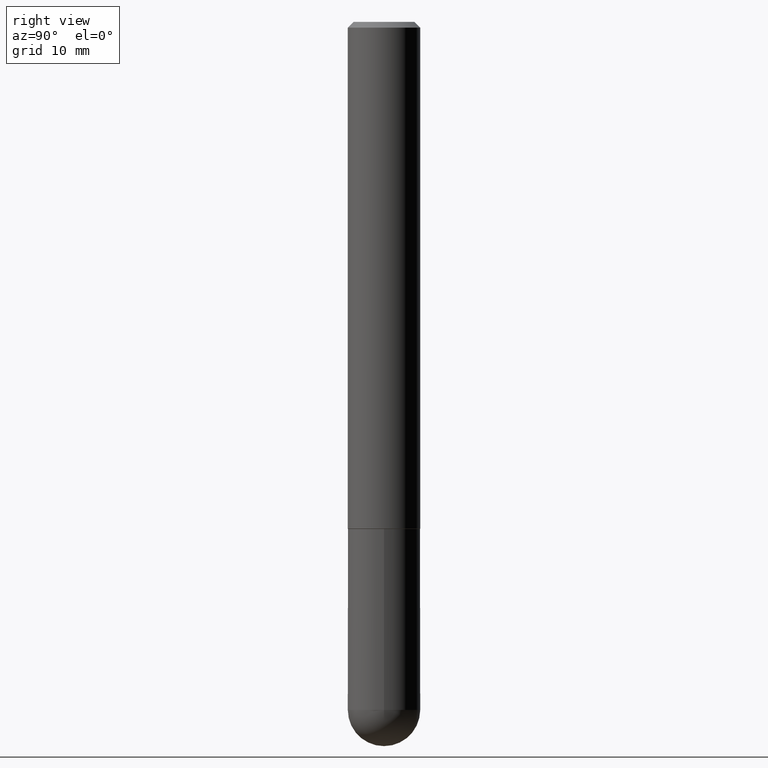
[diagram: clean part render]
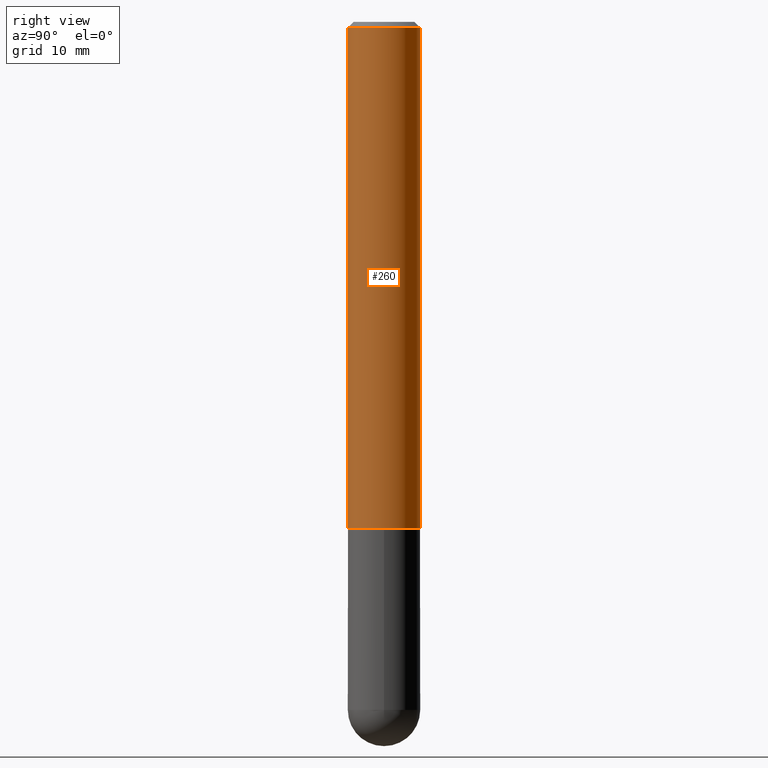
[diagram: same view with one face highlighted and labeled with its STEP entity id]
A machine part, right view. The second image highlights one B-rep face of the part: STEP entity #260.
In plain terms, the highlighted cylindrical surface (edge-blend (fillet) strip) has radius 3.175 mm, axis along (-0, 0, 1).
Its self-contained STEP definition (entity closure, byte-faithful):
#2 = ORIENTED_EDGE ( 'NONE', *, *, #386, .F. ) ;
#15 = CARTESIAN_POINT ( 'NONE',  ( 4.891412266665553962E-31, -6.982282945719821124E-17, -0.02000000000000002470 ) ) ;
#32 = LINE ( 'NONE', #373, #272 ) ;
#45 = ORIENTED_EDGE ( 'NONE', *, *, #349, .T. ) ;
#66 = CARTESIAN_POINT ( 'NONE',  ( -8.728703347107841277E-16, -0.1250000000000001110, 4.363926841074887247E-16 ) ) ;
#71 = AXIS2_PLACEMENT_3D ( 'NONE', #15, #397, #399 ) ;
#78 = CARTESIAN_POINT ( 'NONE',  ( 0.000000000000000000, 0.000000000000000000, 0.000000000000000000 ) ) ;
#87 = FACE_OUTER_BOUND ( 'NONE', #189, .T. ) ;
#105 = CIRCLE ( 'NONE', #361, 0.1250000000000002498 ) ;
#123 = CARTESIAN_POINT ( 'NONE',  ( 4.277540027199021844E-29, -6.106006436031975850E-15, -1.749000000000000110 ) ) ;
#177 = ORIENTED_EDGE ( 'NONE', *, *, #278, .F. ) ;
#188 = DIRECTION ( 'NONE',  ( -2.445706133332773740E-29, 3.491141472859906642E-15, 1.000000000000000000 ) ) ;
#189 = EDGE_LOOP ( 'NONE', ( #45, #318, #177, #2 ) ) ;
#203 = CARTESIAN_POINT ( 'NONE',  ( -8.575622497214408537E-16, -0.1250000000000000555, -0.01999999999999959102 ) ) ;
#235 = DIRECTION ( 'NONE',  ( -6.982962677686266711E-15, -1.000000000000000000, 3.491141472859906642E-15 ) ) ;
#242 = CARTESIAN_POINT ( 'NONE',  ( 8.881784197001479121E-16, 0.1249999999999941019, -1.749000000000000554 ) ) ;
#248 = DIRECTION ( 'NONE',  ( -2.445706133332774021E-29, 3.491141472859906642E-15, 1.000000000000000000 ) ) ;
#258 = VECTOR ( 'NONE', #188, 39.37007874015748143 ) ;
#259 = LINE ( 'NONE', #66, #258 ) ;
#260 = ADVANCED_FACE ( 'NONE', ( #87 ), #400, .T. ) ;
#272 = VECTOR ( 'NONE', #294, 39.37007874015748143 ) ;
#278 = EDGE_CURVE ( 'NONE', #288, #321, #389, .T. ) ;
#288 = VERTEX_POINT ( 'NONE', #203 ) ;
#290 = AXIS2_PLACEMENT_3D ( 'NONE', #78, #303, #235 ) ;
#294 = DIRECTION ( 'NONE',  ( -2.445706133332773740E-29, 3.491141472859906642E-15, 1.000000000000000000 ) ) ;
#303 = DIRECTION ( 'NONE',  ( -2.445706133332774021E-29, 3.491141472859906642E-15, 1.000000000000000000 ) ) ;
#318 = ORIENTED_EDGE ( 'NONE', *, *, #372, .T. ) ;
#319 = VERTEX_POINT ( 'NONE', #242 ) ;
#321 = VERTEX_POINT ( 'NONE', #379 ) ;
#349 = EDGE_CURVE ( 'NONE', #374, #319, #105, .T. ) ;
#350 = CARTESIAN_POINT ( 'NONE',  ( -8.728703347107421208E-16, -0.1250000000000063560, -1.748999999999999666 ) ) ;
#361 = AXIS2_PLACEMENT_3D ( 'NONE', #123, #248, #381 ) ;
#372 = EDGE_CURVE ( 'NONE', #319, #321, #32, .T. ) ;
#373 = CARTESIAN_POINT ( 'NONE',  ( 8.881784197001260212E-16, 0.1250000000000001110, -4.363926841074887247E-16 ) ) ;
#374 = VERTEX_POINT ( 'NONE', #350 ) ;
#379 = CARTESIAN_POINT ( 'NONE',  ( 8.728703347107837333E-16, 0.1249999999999999306, -0.02000000000000046185 ) ) ;
#381 = DIRECTION ( 'NONE',  ( -6.982962677686265133E-15, -1.000000000000000000, 4.370956789862812472E-15 ) ) ;
#386 = EDGE_CURVE ( 'NONE', #374, #288, #259, .T. ) ;
#389 = CIRCLE ( 'NONE', #71, 0.1250000000000000000 ) ;
#397 = DIRECTION ( 'NONE',  ( -2.445706133332774021E-29, 3.491141472859906642E-15, 1.000000000000000000 ) ) ;
#399 = DIRECTION ( 'NONE',  ( -6.982962677686265922E-15, -1.000000000000000000, 3.483106191921935554E-15 ) ) ;
#400 = CYLINDRICAL_SURFACE ( 'NONE', #290, 0.1250000000000001110 ) ;